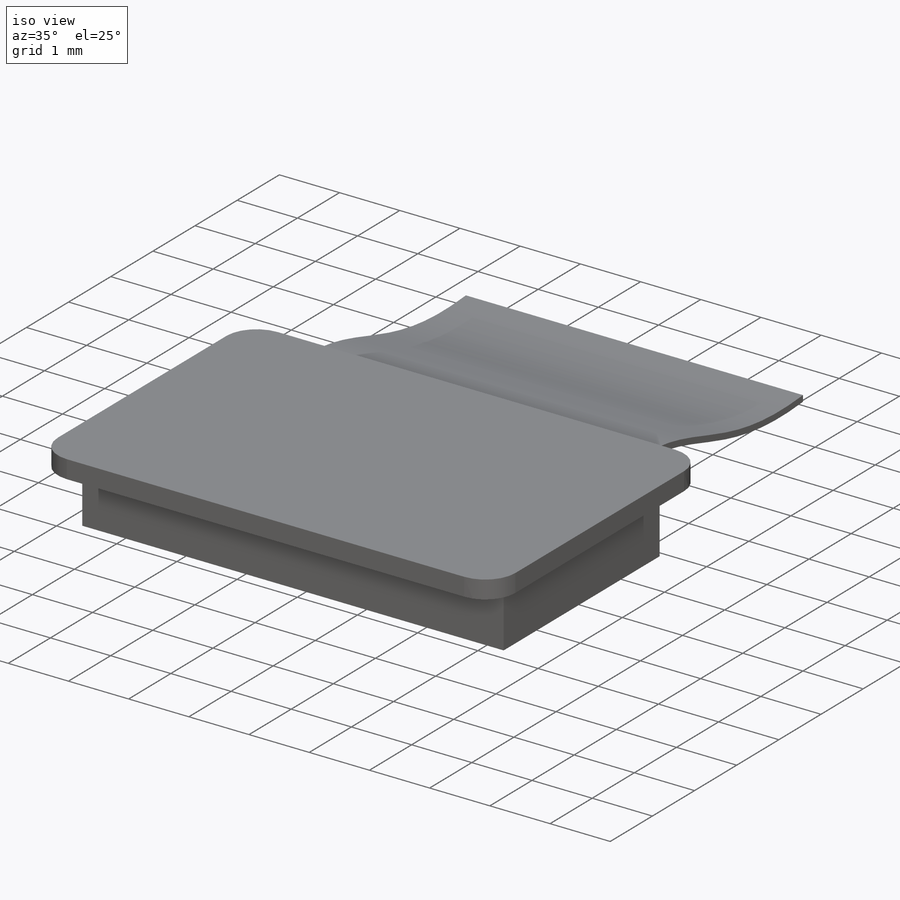
[diagram: iso view]
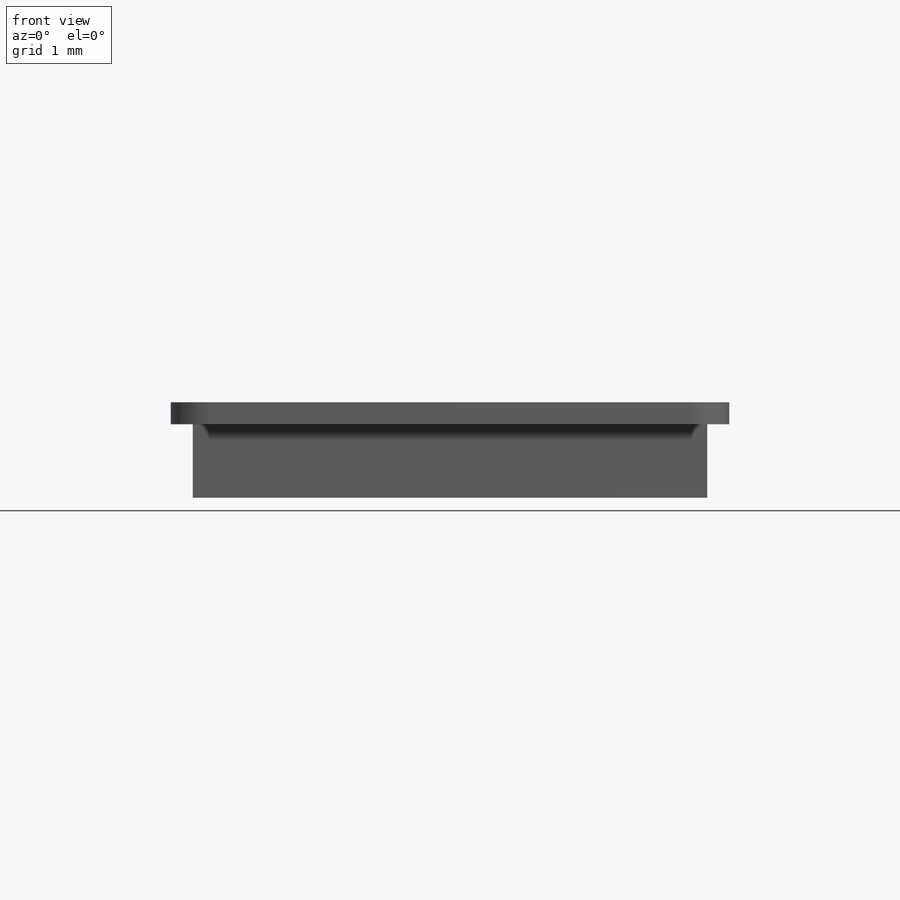
[diagram: front view]
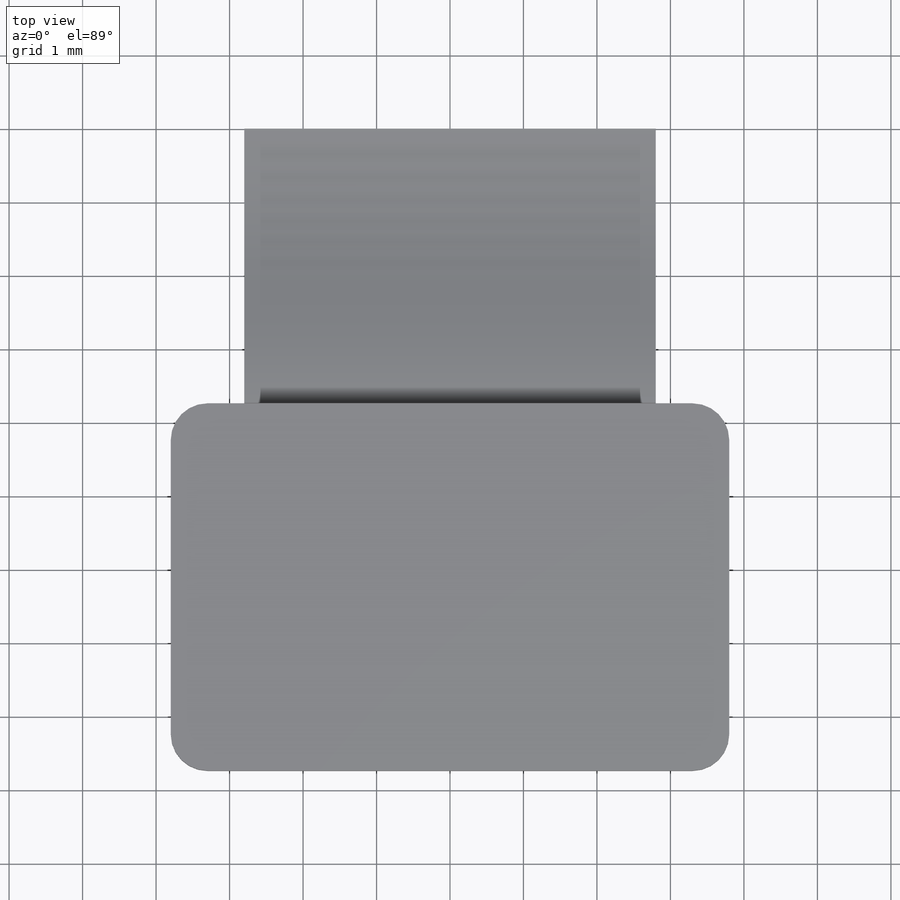
[diagram: top view]
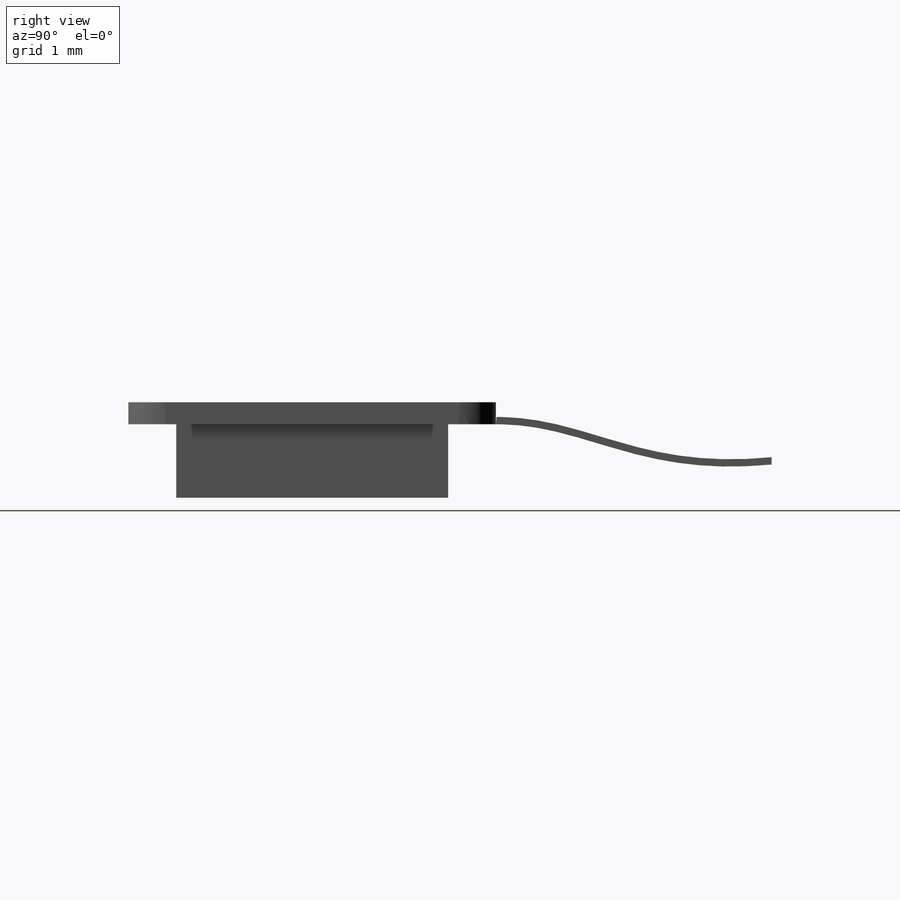
[diagram: right view]
SOLIDWORKS PART (.sldprt)
format: sldprt  version: not decoded by parser v0  size: 446,976 bytes
history: native  units: mm
features: plane x5, sketch x5, extrude x2, material x1, sweep x1 (+10 scaffold rows collapsed)
feature tree (24):
  scaffold x10  (default folders/planes/origin — collapsed)
  material  "ABS PC"
  plane  "Vorne"
  plane  "Oben"
  plane  "Rechts"
  sketch  "downside"  dims[c1.D1=~229.822702mm c1.D2=~305.142747mm c2.D1=8.0mm]
  sketch  "Skizze4"
  plane  "Ebene1"
  sketch  "Skizze5"  dims[c1.D1=~2.670892mm c1.D2=~4.208891mm c2.D1=5.6mm c2.D2=0.1mm]
  sweep  "3,8mm_free_Length"
  plane  "Ebene2"
  sketch  "Skizze6"  dims[c1.D3=0.5mm c1.D1=~4.560234mm c1.D2=~6.650544mm c2.D1=7.6mm c2.D2=5.0mm c2.D4=~10.942661mm]
  extrude  "PCB"  Depth=0.3mm
  sketch  "Skizze7"  dims[c1.D1=~1.032882mm c1.D2=~1.979684mm c2.D1=3.7mm c2.D2=1.0mm]
  extrude  "Connector_Boundary-Box"  Depth=7mm
decode coverage: 6 of 8 modeling features carry decoded parameters
note: ~ marks probable driven/reference dimensions
note: suppression state not decoded; provenance and decode notes live in map.json
